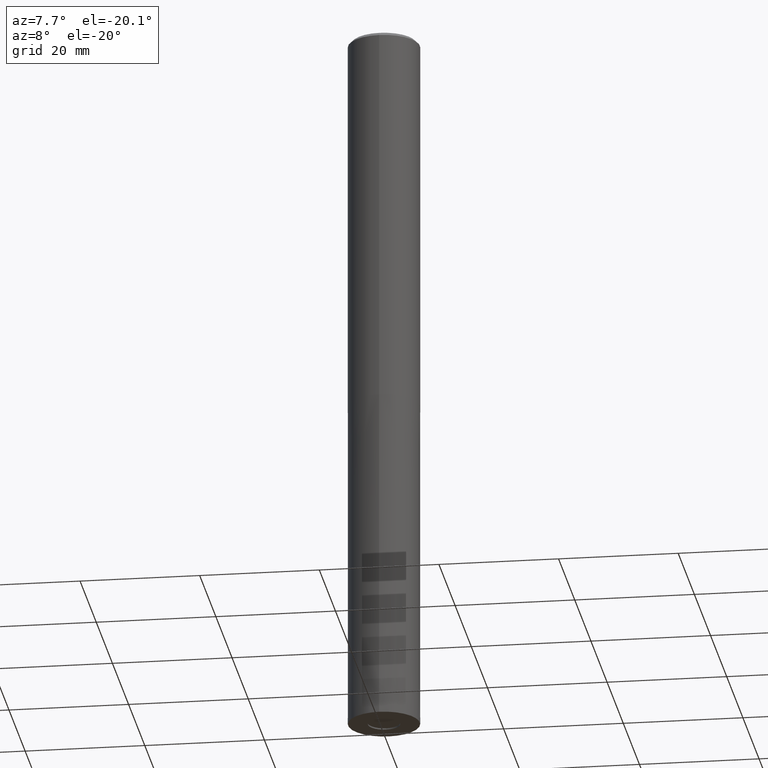
[diagram: clean part render]
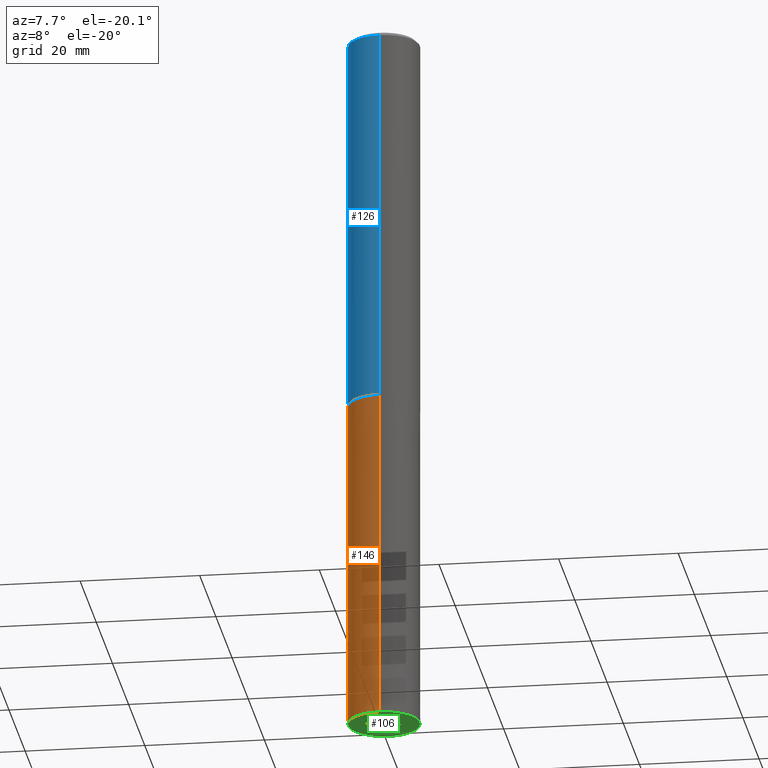
[diagram: same view with three faces highlighted in distinct colors, each labeled with its STEP entity id]
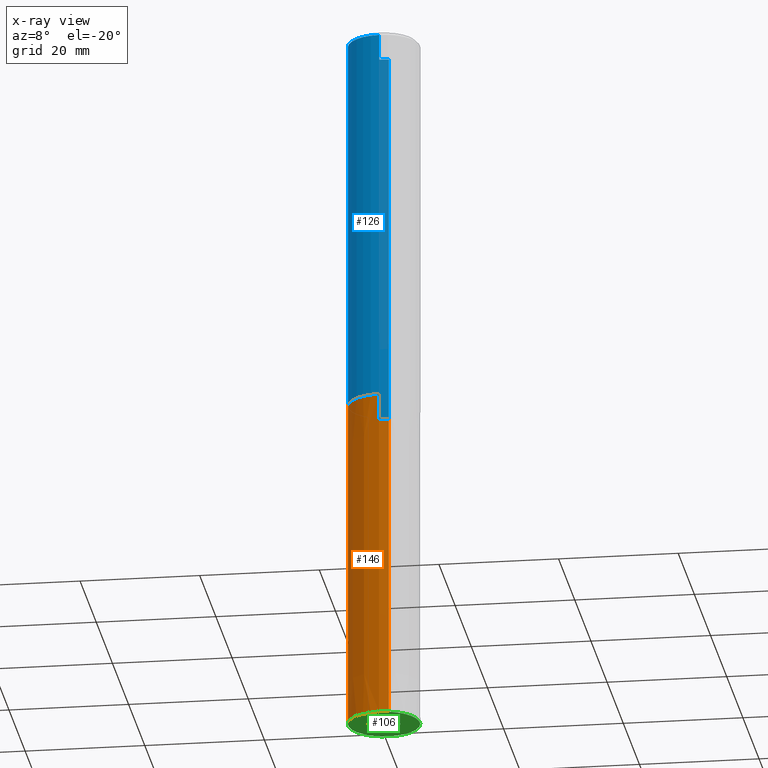
[diagram: x-ray of the same camera — body ghosted, the three highlighted faces saturated]
A machine part, auxiliary view with three faces highlighted in distinct colors.
The next image is the same camera in x-ray (body ghosted, the three faces saturated) — at least one of them is partly hidden behind the body in this view.
Their STEP definitions:

[orange] entity #146 — the highlighted conical surface has half-angle 0 deg.
#98=EDGE_CURVE('',#166,#188,#243,.T.);
#100=EDGE_CURVE('',#166,#208,#245,.T.);
#124=VERTEX_POINT('',#274);
#142=EDGE_CURVE('',#188,#124,#297,.T.);
#146=ADVANCED_FACE('',(#301),#302,.T.);
#166=VERTEX_POINT('',#323);
#188=VERTEX_POINT('',#347);
#192=EDGE_CURVE('',#124,#208,#351,.T.);
#208=VERTEX_POINT('',#370);
#243=LINE('',#401,#402);
#245=CIRCLE('',#405,6.0);
#274=CARTESIAN_POINT('',(0.0,5.9999,-64.0));
#297=CIRCLE('',#462,5.9999);
#301=FACE_OUTER_BOUND('',#467,.T.);
#302=CONICAL_SURFACE('',#468,5.99995,1.78571428570823E-006);
#323=CARTESIAN_POINT('',(7.34763812293426E-016,-6.0,-120.0));
#347=CARTESIAN_POINT('',(7.34751566229888E-016,-5.9999,-64.0));
#351=LINE('',#530,#531);
#370=CARTESIAN_POINT('',(0.0,6.0,-120.0));
#401=CARTESIAN_POINT('',(7.34757689261657E-016,-5.99995,-92.0));
#402=VECTOR('',#577,1.0);
#405=AXIS2_PLACEMENT_3D('',#578,#579,#580);
#462=AXIS2_PLACEMENT_3D('',#648,#649,#650);
#467=EDGE_LOOP('',(#655,#656,#657,#658));
#468=AXIS2_PLACEMENT_3D('',#659,#660,#661);
#530=CARTESIAN_POINT('',(-7.34757689261658E-016,5.99995,-92.0));
#531=VECTOR('',#711,1.0);
#577=DIRECTION('',(-2.18679706038852E-022,1.78571428570728E-006,0.999999999998406));
#578=CARTESIAN_POINT('',(0.0,0.0,-120.0));
#579=DIRECTION('',(0.0,0.0,-1.0));
#580=DIRECTION('',(0.0,1.0,0.0));
#648=CARTESIAN_POINT('',(0.0,0.0,-64.0));
#649=DIRECTION('',(0.0,0.0,-1.0));
#650=DIRECTION('',(0.0,1.0,0.0));
#655=ORIENTED_EDGE('',*,*,#192,.T.);
#656=ORIENTED_EDGE('',*,*,#100,.F.);
#657=ORIENTED_EDGE('',*,*,#98,.T.);
#658=ORIENTED_EDGE('',*,*,#142,.T.);
#659=CARTESIAN_POINT('',(0.0,0.0,-92.0));
#660=DIRECTION('',(0.0,-0.0,-1.0));
#661=DIRECTION('',(0.0,1.0,0.0));
#711=DIRECTION('',(-2.18679706038852E-022,1.78571428570728E-006,-0.999999999998406));

[blue] entity #126 — the highlighted cylindrical surface (edge-blend (fillet) strip) has radius 6 mm, axis along (-0, -0, 1).
#108=VERTEX_POINT('',#255);
#126=ADVANCED_FACE('',(#276),#277,.T.);
#148=VERTEX_POINT('',#304);
#160=EDGE_CURVE('',#164,#178,#316,.T.);
#164=VERTEX_POINT('',#321);
#178=VERTEX_POINT('',#335);
#198=EDGE_CURVE('',#178,#108,#358,.T.);
#210=EDGE_CURVE('',#148,#164,#372,.T.);
#212=EDGE_CURVE('',#148,#108,#374,.T.);
#255=CARTESIAN_POINT('',(0.0,6.0,-64.0));
#276=FACE_OUTER_BOUND('',#437,.T.);
#277=CYLINDRICAL_SURFACE('',#438,6.0);
#304=CARTESIAN_POINT('',(7.34763812293426E-016,-6.0,-64.0));
#316=CIRCLE('',#484,6.0);
#321=CARTESIAN_POINT('',(7.34763812293426E-016,-6.0,-0.600000000000001));
#335=CARTESIAN_POINT('',(0.0,6.0,-0.600000000000001));
#358=LINE('',#539,#540);
#372=LINE('',#558,#559);
#374=CIRCLE('',#562,6.0);
#437=EDGE_LOOP('',(#613,#614,#615,#616));
#438=AXIS2_PLACEMENT_3D('',#617,#618,#619);
#484=AXIS2_PLACEMENT_3D('',#669,#670,#671);
#539=CARTESIAN_POINT('',(-7.34763812293426E-016,6.0,-32.3));
#540=VECTOR('',#718,1.0);
#558=CARTESIAN_POINT('',(7.34763812293426E-016,-6.0,-32.3));
#559=VECTOR('',#739,1.0);
#562=AXIS2_PLACEMENT_3D('',#740,#741,#742);
#613=ORIENTED_EDGE('',*,*,#198,.T.);
#614=ORIENTED_EDGE('',*,*,#212,.F.);
#615=ORIENTED_EDGE('',*,*,#210,.T.);
#616=ORIENTED_EDGE('',*,*,#160,.T.);
#617=CARTESIAN_POINT('',(0.0,0.0,-32.3));
#618=DIRECTION('',(-0.0,-0.0,1.0));
#619=DIRECTION('',(0.0,1.0,0.0));
#669=CARTESIAN_POINT('',(0.0,0.0,-0.600000000000001));
#670=DIRECTION('',(0.0,0.0,-1.0));
#671=DIRECTION('',(0.0,1.0,0.0));
#718=DIRECTION('',(0.0,0.0,-1.0));
#739=DIRECTION('',(-0.0,-0.0,1.0));
#740=CARTESIAN_POINT('',(0.0,0.0,-64.0));
#741=DIRECTION('',(0.0,0.0,-1.0));
#742=DIRECTION('',(0.0,1.0,0.0));

[green] entity #106 — the highlighted planar face has unit normal (0, 0, -1).
#100=EDGE_CURVE('',#166,#208,#245,.T.);
#106=ADVANCED_FACE('',(#251,#252),#253,.T.);
#118=VERTEX_POINT('',#268);
#120=VERTEX_POINT('',#270);
#166=VERTEX_POINT('',#323);
#176=EDGE_CURVE('',#208,#166,#333,.T.);
#182=EDGE_CURVE('',#118,#120,#340,.T.);
#200=EDGE_CURVE('',#120,#118,#360,.T.);
#208=VERTEX_POINT('',#370);
#245=CIRCLE('',#405,6.0);
#251=FACE_OUTER_BOUND('',#410,.T.);
#252=FACE_BOUND('',#411,.T.);
#253=PLANE('',#412);
#268=CARTESIAN_POINT('',(0.0,2.7,-120.0));
#270=CARTESIAN_POINT('',(3.30643715532042E-016,-2.7,-120.0));
#323=CARTESIAN_POINT('',(7.34763812293426E-016,-6.0,-120.0));
#333=CIRCLE('',#506,6.0);
#340=CIRCLE('',#514,2.7);
#360=CIRCLE('',#543,2.7);
#370=CARTESIAN_POINT('',(0.0,6.0,-120.0));
#405=AXIS2_PLACEMENT_3D('',#578,#579,#580);
#410=EDGE_LOOP('',(#583,#584));
#411=EDGE_LOOP('',(#585,#586));
#412=AXIS2_PLACEMENT_3D('',#587,#588,#589);
#506=AXIS2_PLACEMENT_3D('',#687,#688,#689);
#514=AXIS2_PLACEMENT_3D('',#698,#699,#700);
#543=AXIS2_PLACEMENT_3D('',#719,#720,#721);
#578=CARTESIAN_POINT('',(0.0,0.0,-120.0));
#579=DIRECTION('',(0.0,0.0,-1.0));
#580=DIRECTION('',(0.0,1.0,0.0));
#583=ORIENTED_EDGE('',*,*,#176,.T.);
#584=ORIENTED_EDGE('',*,*,#100,.T.);
#585=ORIENTED_EDGE('',*,*,#182,.F.);
#586=ORIENTED_EDGE('',*,*,#200,.F.);
#587=CARTESIAN_POINT('',(0.0,4.3475,-120.0));
#588=DIRECTION('',(0.0,0.0,-1.0));
#589=DIRECTION('',(0.0,1.0,0.0));
#687=CARTESIAN_POINT('',(0.0,0.0,-120.0));
#688=DIRECTION('',(0.0,0.0,-1.0));
#689=DIRECTION('',(0.0,1.0,0.0));
#698=CARTESIAN_POINT('',(0.0,0.0,-120.0));
#699=DIRECTION('',(0.0,0.0,-1.0));
#700=DIRECTION('',(0.0,1.0,0.0));
#719=CARTESIAN_POINT('',(0.0,0.0,-120.0));
#720=DIRECTION('',(0.0,0.0,-1.0));
#721=DIRECTION('',(0.0,1.0,0.0));